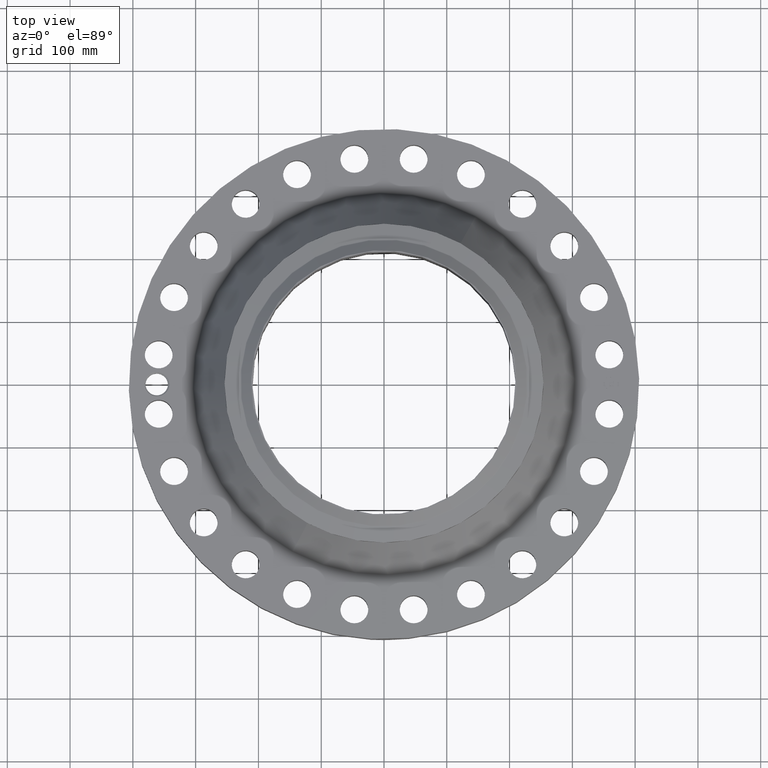
[diagram: clean part render]
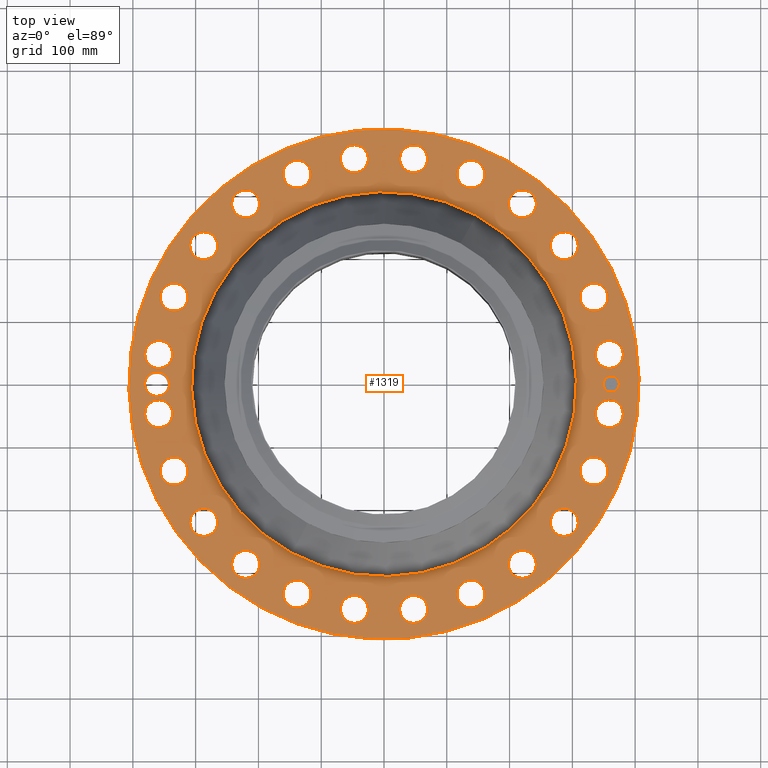
[diagram: same view with one face highlighted and labeled with its STEP entity id]
A machine part, top view. The second image highlights one B-rep face of the part: STEP entity #1319.
In plain terms, the highlighted planar face has unit normal (0, 0, -1).
Its self-contained STEP definition (entity closure, byte-faithful):
#58=AXIS2_PLACEMENT_3D('Circle Axis2P3D',#56,#57,$) ;
#687=AXIS2_PLACEMENT_3D('Circle Axis2P3D',#685,#686,$) ;
#787=AXIS2_PLACEMENT_3D('Plane Axis2P3D',#784,#785,#786) ;
#835=AXIS2_PLACEMENT_3D('Circle Axis2P3D',#833,#834,$) ;
#842=AXIS2_PLACEMENT_3D('Circle Axis2P3D',#840,#841,$) ;
#853=AXIS2_PLACEMENT_3D('Circle Axis2P3D',#851,#852,$) ;
#862=AXIS2_PLACEMENT_3D('Circle Axis2P3D',#860,#861,$) ;
#871=AXIS2_PLACEMENT_3D('Circle Axis2P3D',#869,#870,$) ;
#880=AXIS2_PLACEMENT_3D('Circle Axis2P3D',#878,#879,$) ;
#889=AXIS2_PLACEMENT_3D('Circle Axis2P3D',#887,#888,$) ;
#898=AXIS2_PLACEMENT_3D('Circle Axis2P3D',#896,#897,$) ;
#907=AXIS2_PLACEMENT_3D('Circle Axis2P3D',#905,#906,$) ;
#916=AXIS2_PLACEMENT_3D('Circle Axis2P3D',#914,#915,$) ;
#925=AXIS2_PLACEMENT_3D('Circle Axis2P3D',#923,#924,$) ;
#934=AXIS2_PLACEMENT_3D('Circle Axis2P3D',#932,#933,$) ;
#943=AXIS2_PLACEMENT_3D('Circle Axis2P3D',#941,#942,$) ;
#952=AXIS2_PLACEMENT_3D('Circle Axis2P3D',#950,#951,$) ;
#961=AXIS2_PLACEMENT_3D('Circle Axis2P3D',#959,#960,$) ;
#970=AXIS2_PLACEMENT_3D('Circle Axis2P3D',#968,#969,$) ;
#979=AXIS2_PLACEMENT_3D('Circle Axis2P3D',#977,#978,$) ;
#988=AXIS2_PLACEMENT_3D('Circle Axis2P3D',#986,#987,$) ;
#997=AXIS2_PLACEMENT_3D('Circle Axis2P3D',#995,#996,$) ;
#1006=AXIS2_PLACEMENT_3D('Circle Axis2P3D',#1004,#1005,$) ;
#1015=AXIS2_PLACEMENT_3D('Circle Axis2P3D',#1013,#1014,$) ;
#1024=AXIS2_PLACEMENT_3D('Circle Axis2P3D',#1022,#1023,$) ;
#1033=AXIS2_PLACEMENT_3D('Circle Axis2P3D',#1031,#1032,$) ;
#1042=AXIS2_PLACEMENT_3D('Circle Axis2P3D',#1040,#1041,$) ;
#1051=AXIS2_PLACEMENT_3D('Circle Axis2P3D',#1049,#1050,$) ;
#1060=AXIS2_PLACEMENT_3D('Circle Axis2P3D',#1058,#1059,$) ;
#1069=AXIS2_PLACEMENT_3D('Circle Axis2P3D',#1067,#1068,$) ;
#1078=AXIS2_PLACEMENT_3D('Circle Axis2P3D',#1076,#1077,$) ;
#1087=AXIS2_PLACEMENT_3D('Circle Axis2P3D',#1085,#1086,$) ;
#1096=AXIS2_PLACEMENT_3D('Circle Axis2P3D',#1094,#1095,$) ;
#1105=AXIS2_PLACEMENT_3D('Circle Axis2P3D',#1103,#1104,$) ;
#1114=AXIS2_PLACEMENT_3D('Circle Axis2P3D',#1112,#1113,$) ;
#1123=AXIS2_PLACEMENT_3D('Circle Axis2P3D',#1121,#1122,$) ;
#1132=AXIS2_PLACEMENT_3D('Circle Axis2P3D',#1130,#1131,$) ;
#1141=AXIS2_PLACEMENT_3D('Circle Axis2P3D',#1139,#1140,$) ;
#1150=AXIS2_PLACEMENT_3D('Circle Axis2P3D',#1148,#1149,$) ;
#1159=AXIS2_PLACEMENT_3D('Circle Axis2P3D',#1157,#1158,$) ;
#1168=AXIS2_PLACEMENT_3D('Circle Axis2P3D',#1166,#1167,$) ;
#1177=AXIS2_PLACEMENT_3D('Circle Axis2P3D',#1175,#1176,$) ;
#1186=AXIS2_PLACEMENT_3D('Circle Axis2P3D',#1184,#1185,$) ;
#1195=AXIS2_PLACEMENT_3D('Circle Axis2P3D',#1193,#1194,$) ;
#1204=AXIS2_PLACEMENT_3D('Circle Axis2P3D',#1202,#1203,$) ;
#1213=AXIS2_PLACEMENT_3D('Circle Axis2P3D',#1211,#1212,$) ;
#1222=AXIS2_PLACEMENT_3D('Circle Axis2P3D',#1220,#1221,$) ;
#1231=AXIS2_PLACEMENT_3D('Circle Axis2P3D',#1229,#1230,$) ;
#1240=AXIS2_PLACEMENT_3D('Circle Axis2P3D',#1238,#1239,$) ;
#1249=AXIS2_PLACEMENT_3D('Circle Axis2P3D',#1247,#1248,$) ;
#1258=AXIS2_PLACEMENT_3D('Circle Axis2P3D',#1256,#1257,$) ;
#1267=AXIS2_PLACEMENT_3D('Circle Axis2P3D',#1265,#1266,$) ;
#1276=AXIS2_PLACEMENT_3D('Circle Axis2P3D',#1274,#1275,$) ;
#1285=AXIS2_PLACEMENT_3D('Circle Axis2P3D',#1283,#1284,$) ;
#1294=AXIS2_PLACEMENT_3D('Circle Axis2P3D',#1292,#1293,$) ;
#1303=AXIS2_PLACEMENT_3D('Circle Axis2P3D',#1301,#1302,$) ;
#1312=AXIS2_PLACEMENT_3D('Circle Axis2P3D',#1310,#1311,$) ;
#53=CARTESIAN_POINT('Vertex',(-7.6708086177,-14.0413209903,3.75000000002)) ;
#56=CARTESIAN_POINT('Axis2P3D Location',(0.,0.,3.75000000002)) ;
#60=CARTESIAN_POINT('Vertex',(7.6708086177,14.0413209903,3.75000000002)) ;
#685=CARTESIAN_POINT('Axis2P3D Location',(0.,0.,3.75000000002)) ;
#784=CARTESIAN_POINT('Axis2P3D Location',(0.,16.0000000001,3.75000000002)) ;
#794=CARTESIAN_POINT('Control Point',(-13.4375000001,2.23792987641E-015,3.75000000002)) ;
#795=CARTESIAN_POINT('Control Point',(-13.440502702,0.0700643775621,3.75000000002)) ;
#796=CARTESIAN_POINT('Control Point',(-13.4510650987,0.139653934446,3.75000000002)) ;
#797=CARTESIAN_POINT('Control Point',(-13.4691221581,0.207669696492,3.75000000002)) ;
#798=CARTESIAN_POINT('Control Point',(-13.5195963278,0.338375381576,3.75000000002)) ;
#799=CARTESIAN_POINT('Control Point',(-13.5966936533,0.454596656891,3.75000000002)) ;
#800=CARTESIAN_POINT('Control Point',(-13.641372885,0.508119631625,3.75000000002)) ;
#801=CARTESIAN_POINT('Control Point',(-13.7248060223,0.588234346808,3.75000000002)) ;
#802=CARTESIAN_POINT('Control Point',(-13.8207317135,0.651398174402,3.75000000002)) ;
#803=CARTESIAN_POINT('Control Point',(-13.8608247127,0.673749759105,3.75000000002)) ;
#804=CARTESIAN_POINT('Control Point',(-13.9334162248,0.707459410996,3.75000000002)) ;
#805=CARTESIAN_POINT('Control Point',(-14.0094371519,0.731460636803,3.75000000002)) ;
#806=CARTESIAN_POINT('Control Point',(-14.0424616075,0.739905645218,3.75000000002)) ;
#807=CARTESIAN_POINT('Control Point',(-14.0758392512,0.746494340754,3.75000000002)) ;
#808=CARTESIAN_POINT('Control Point',(-14.1094305212,0.751211211386,3.75000000002)) ;
#809=CARTESIAN_POINT('Vertex',(-13.4375000001,2.23792987641E-015,3.75000000002)) ;
#811=CARTESIAN_POINT('Vertex',(-14.1094305212,0.751211211386,3.75000000002)) ;
#815=CARTESIAN_POINT('Control Point',(-13.4375000001,0.,3.75000000002)) ;
#816=CARTESIAN_POINT('Control Point',(-13.440503454,-0.0700819223772,3.75000000002)) ;
#817=CARTESIAN_POINT('Control Point',(-13.4510703985,-0.139688782153,3.75000000002)) ;
#818=CARTESIAN_POINT('Control Point',(-13.4691263035,-0.207700071485,3.75000000002)) ;
#819=CARTESIAN_POINT('Control Point',(-13.5196047595,-0.33841916255,3.75000000002)) ;
#820=CARTESIAN_POINT('Control Point',(-13.5966629018,-0.454573244085,3.75000000002)) ;
#821=CARTESIAN_POINT('Control Point',(-13.6413277059,-0.508069849471,3.75000000002)) ;
#822=CARTESIAN_POINT('Control Point',(-13.7414181484,-0.604187153399,3.75000000002)) ;
#823=CARTESIAN_POINT('Control Point',(-13.8594367341,-0.675897174168,3.75000000002)) ;
#824=CARTESIAN_POINT('Control Point',(-13.9220592148,-0.705005529361,3.75000000002)) ;
#825=CARTESIAN_POINT('Control Point',(-13.9980972643,-0.730534599919,3.75000000002)) ;
#826=CARTESIAN_POINT('Control Point',(-14.0761239416,-0.745926261489,3.75000000002)) ;
#827=CARTESIAN_POINT('Control Point',(-14.0873047858,-0.74791692672,3.75000000002)) ;
#828=CARTESIAN_POINT('Control Point',(-14.098516016,-0.749698855535,3.75000000002)) ;
#829=CARTESIAN_POINT('Control Point',(-14.1097524747,-0.751271385137,3.75000000002)) ;
#830=CARTESIAN_POINT('Vertex',(-14.1097524747,-0.751271385137,3.75000000002)) ;
#833=CARTESIAN_POINT('Axis2P3D Location',(-14.2500000001,1.56655091349E-014,3.75000000002)) ;
#837=CARTESIAN_POINT('Vertex',(-14.920692473,0.36640096788,3.75000000002)) ;
#840=CARTESIAN_POINT('Axis2P3D Location',(-14.2500000001,1.56655091349E-014,3.75000000002)) ;
#851=CARTESIAN_POINT('Axis2P3D Location',(14.1280892746,-1.85999823914,3.75000000002)) ;
#855=CARTESIAN_POINT('Vertex',(13.360204533,-1.44050089286,3.75000000002)) ;
#857=CARTESIAN_POINT('Vertex',(14.8959740163,-2.27949558542,3.75000000002)) ;
#860=CARTESIAN_POINT('Axis2P3D Location',(14.1280892746,-1.85999823914,3.75000000002)) ;
#869=CARTESIAN_POINT('Axis2P3D Location',(0.,0.,3.75000000002)) ;
#873=CARTESIAN_POINT('Vertex',(-5.78430904975,-10.5881066942,3.75000000002)) ;
#875=CARTESIAN_POINT('Vertex',(5.78430904975,10.5881066942,3.75000000002)) ;
#878=CARTESIAN_POINT('Axis2P3D Location',(0.,0.,3.75000000002)) ;
#887=CARTESIAN_POINT('Axis2P3D Location',(13.1652833383,-5.45323891122,3.75000000002)) ;
#891=CARTESIAN_POINT('Vertex',(13.7984291393,-6.05718542764,3.75000000002)) ;
#893=CARTESIAN_POINT('Vertex',(12.5321375373,-4.84929239481,3.75000000002)) ;
#896=CARTESIAN_POINT('Axis2P3D Location',(13.1652833383,-5.45323891122,3.75000000002)) ;
#905=CARTESIAN_POINT('Axis2P3D Location',(11.3052850992,-8.67485036341,3.75000000002)) ;
#909=CARTESIAN_POINT('Vertex',(11.7605441195,-9.42208809294,3.75000000002)) ;
#911=CARTESIAN_POINT('Vertex',(10.8500260789,-7.92761263388,3.75000000002)) ;
#914=CARTESIAN_POINT('Axis2P3D Location',(11.3052850992,-8.67485036341,3.75000000002)) ;
#923=CARTESIAN_POINT('Axis2P3D Location',(8.67485036341,-11.3052850992,3.75000000002)) ;
#927=CARTESIAN_POINT('Vertex',(8.92119745316,-12.1448910254,3.75000000002)) ;
#929=CARTESIAN_POINT('Vertex',(8.42850327366,-10.465679173,3.75000000002)) ;
#932=CARTESIAN_POINT('Axis2P3D Location',(8.67485036341,-11.3052850992,3.75000000002)) ;
#941=CARTESIAN_POINT('Axis2P3D Location',(5.45323891122,-13.1652833383,3.75000000002)) ;
#945=CARTESIAN_POINT('Vertex',(5.47388592335,-14.0400397049,3.75000000002)) ;
#947=CARTESIAN_POINT('Vertex',(5.43259189909,-12.2905269717,3.75000000002)) ;
#950=CARTESIAN_POINT('Axis2P3D Location',(5.45323891122,-13.1652833383,3.75000000002)) ;
#959=CARTESIAN_POINT('Axis2P3D Location',(1.85999823914,-14.1280892746,3.75000000002)) ;
#963=CARTESIAN_POINT('Vertex',(1.6535381139,-14.9783828808,3.75000000002)) ;
#965=CARTESIAN_POINT('Vertex',(2.06645836439,-13.2777956685,3.75000000002)) ;
#968=CARTESIAN_POINT('Axis2P3D Location',(1.85999823914,-14.1280892746,3.75000000002)) ;
#977=CARTESIAN_POINT('Axis2P3D Location',(-1.85999823914,-14.1280892746,3.75000000002)) ;
#981=CARTESIAN_POINT('Vertex',(-2.27949558542,-14.8959740163,3.75000000002)) ;
#983=CARTESIAN_POINT('Vertex',(-1.44050089286,-13.360204533,3.75000000002)) ;
#986=CARTESIAN_POINT('Axis2P3D Location',(-1.85999823914,-14.1280892746,3.75000000002)) ;
#995=CARTESIAN_POINT('Axis2P3D Location',(-5.45323891122,-13.1652833383,3.75000000002)) ;
#999=CARTESIAN_POINT('Vertex',(-6.05718542764,-13.7984291393,3.75000000002)) ;
#1001=CARTESIAN_POINT('Vertex',(-4.84929239481,-12.5321375373,3.75000000002)) ;
#1004=CARTESIAN_POINT('Axis2P3D Location',(-5.45323891122,-13.1652833383,3.75000000002)) ;
#1013=CARTESIAN_POINT('Axis2P3D Location',(-8.67485036341,-11.3052850992,3.75000000002)) ;
#1017=CARTESIAN_POINT('Vertex',(-9.42208809294,-11.7605441195,3.75000000002)) ;
#1019=CARTESIAN_POINT('Vertex',(-7.92761263388,-10.8500260789,3.75000000002)) ;
#1022=CARTESIAN_POINT('Axis2P3D Location',(-8.67485036341,-11.3052850992,3.75000000002)) ;
#1031=CARTESIAN_POINT('Axis2P3D Location',(-11.3052850992,-8.67485036341,3.75000000002)) ;
#1035=CARTESIAN_POINT('Vertex',(-12.1448910254,-8.92119745316,3.75000000002)) ;
#1037=CARTESIAN_POINT('Vertex',(-10.465679173,-8.42850327366,3.75000000002)) ;
#1040=CARTESIAN_POINT('Axis2P3D Location',(-11.3052850992,-8.67485036341,3.75000000002)) ;
#1049=CARTESIAN_POINT('Axis2P3D Location',(-13.1652833383,-5.45323891122,3.75000000002)) ;
#1053=CARTESIAN_POINT('Vertex',(-14.0400397049,-5.47388592335,3.75000000002)) ;
#1055=CARTESIAN_POINT('Vertex',(-12.2905269717,-5.43259189909,3.75000000002)) ;
#1058=CARTESIAN_POINT('Axis2P3D Location',(-13.1652833383,-5.45323891122,3.75000000002)) ;
#1067=CARTESIAN_POINT('Axis2P3D Location',(-14.1280892746,-1.85999823914,3.75000000002)) ;
#1071=CARTESIAN_POINT('Vertex',(-14.9783828808,-1.6535381139,3.75000000002)) ;
#1073=CARTESIAN_POINT('Vertex',(-13.2777956685,-2.06645836439,3.75000000002)) ;
#1076=CARTESIAN_POINT('Axis2P3D Location',(-14.1280892746,-1.85999823914,3.75000000002)) ;
#1085=CARTESIAN_POINT('Axis2P3D Location',(-14.1280892746,1.85999823914,3.75000000002)) ;
#1089=CARTESIAN_POINT('Vertex',(-14.8959740163,2.27949558542,3.75000000002)) ;
#1091=CARTESIAN_POINT('Vertex',(-13.360204533,1.44050089286,3.75000000002)) ;
#1094=CARTESIAN_POINT('Axis2P3D Location',(-14.1280892746,1.85999823914,3.75000000002)) ;
#1103=CARTESIAN_POINT('Axis2P3D Location',(-13.1652833383,5.45323891122,3.75000000002)) ;
#1107=CARTESIAN_POINT('Vertex',(-13.7984291393,6.05718542764,3.75000000002)) ;
#1109=CARTESIAN_POINT('Vertex',(-12.5321375373,4.84929239481,3.75000000002)) ;
#1112=CARTESIAN_POINT('Axis2P3D Location',(-13.1652833383,5.45323891122,3.75000000002)) ;
#1121=CARTESIAN_POINT('Axis2P3D Location',(-11.3052850992,8.67485036341,3.75000000002)) ;
#1125=CARTESIAN_POINT('Vertex',(-11.7605441195,9.42208809294,3.75000000002)) ;
#1127=CARTESIAN_POINT('Vertex',(-10.8500260789,7.92761263388,3.75000000002)) ;
#1130=CARTESIAN_POINT('Axis2P3D Location',(-11.3052850992,8.67485036341,3.75000000002)) ;
#1139=CARTESIAN_POINT('Axis2P3D Location',(-8.67485036341,11.3052850992,3.75000000002)) ;
#1143=CARTESIAN_POINT('Vertex',(-8.92119745316,12.1448910254,3.75000000002)) ;
#1145=CARTESIAN_POINT('Vertex',(-8.42850327366,10.465679173,3.75000000002)) ;
#1148=CARTESIAN_POINT('Axis2P3D Location',(-8.67485036341,11.3052850992,3.75000000002)) ;
#1157=CARTESIAN_POINT('Axis2P3D Location',(-5.45323891122,13.1652833383,3.75000000002)) ;
#1161=CARTESIAN_POINT('Vertex',(-5.47388592335,14.0400397049,3.75000000002)) ;
#1163=CARTESIAN_POINT('Vertex',(-5.43259189909,12.2905269717,3.75000000002)) ;
#1166=CARTESIAN_POINT('Axis2P3D Location',(-5.45323891122,13.1652833383,3.75000000002)) ;
#1175=CARTESIAN_POINT('Axis2P3D Location',(-1.85999823914,14.1280892746,3.75000000002)) ;
#1179=CARTESIAN_POINT('Vertex',(-1.6535381139,14.9783828808,3.75000000002)) ;
#1181=CARTESIAN_POINT('Vertex',(-2.06645836439,13.2777956685,3.75000000002)) ;
#1184=CARTESIAN_POINT('Axis2P3D Location',(-1.85999823914,14.1280892746,3.75000000002)) ;
#1193=CARTESIAN_POINT('Axis2P3D Location',(1.85999823914,14.1280892746,3.75000000002)) ;
#1197=CARTESIAN_POINT('Vertex',(2.27949558542,14.8959740163,3.75000000002)) ;
#1199=CARTESIAN_POINT('Vertex',(1.44050089286,13.360204533,3.75000000002)) ;
#1202=CARTESIAN_POINT('Axis2P3D Location',(1.85999823914,14.1280892746,3.75000000002)) ;
#1211=CARTESIAN_POINT('Axis2P3D Location',(5.45323891122,13.1652833383,3.75000000002)) ;
#1215=CARTESIAN_POINT('Vertex',(6.05718542764,13.7984291393,3.75000000002)) ;
#1217=CARTESIAN_POINT('Vertex',(4.84929239481,12.5321375373,3.75000000002)) ;
#1220=CARTESIAN_POINT('Axis2P3D Location',(5.45323891122,13.1652833383,3.75000000002)) ;
#1229=CARTESIAN_POINT('Axis2P3D Location',(8.67485036341,11.3052850992,3.75000000002)) ;
#1233=CARTESIAN_POINT('Vertex',(9.42208809294,11.7605441195,3.75000000002)) ;
#1235=CARTESIAN_POINT('Vertex',(7.92761263388,10.8500260789,3.75000000002)) ;
#1238=CARTESIAN_POINT('Axis2P3D Location',(8.67485036341,11.3052850992,3.75000000002)) ;
#1247=CARTESIAN_POINT('Axis2P3D Location',(11.3052850992,8.67485036341,3.75000000002)) ;
#1251=CARTESIAN_POINT('Vertex',(12.1448910254,8.92119745316,3.75000000002)) ;
#1253=CARTESIAN_POINT('Vertex',(10.465679173,8.42850327366,3.75000000002)) ;
#1256=CARTESIAN_POINT('Axis2P3D Location',(11.3052850992,8.67485036341,3.75000000002)) ;
#1265=CARTESIAN_POINT('Axis2P3D Location',(13.1652833383,5.45323891122,3.75000000002)) ;
#1269=CARTESIAN_POINT('Vertex',(14.0400397049,5.47388592335,3.75000000002)) ;
#1271=CARTESIAN_POINT('Vertex',(12.2905269717,5.43259189909,3.75000000002)) ;
#1274=CARTESIAN_POINT('Axis2P3D Location',(13.1652833383,5.45323891122,3.75000000002)) ;
#1283=CARTESIAN_POINT('Axis2P3D Location',(14.1280892746,1.85999823914,3.75000000002)) ;
#1287=CARTESIAN_POINT('Vertex',(14.9783828808,1.6535381139,3.75000000002)) ;
#1289=CARTESIAN_POINT('Vertex',(13.2777956685,2.06645836439,3.75000000002)) ;
#1292=CARTESIAN_POINT('Axis2P3D Location',(14.1280892746,1.85999823914,3.75000000002)) ;
#1301=CARTESIAN_POINT('Axis2P3D Location',(14.2500000001,-1.29799932832E-013,3.75000000002)) ;
#1305=CARTESIAN_POINT('Vertex',(14.2500000001,0.499999995002,3.75000000002)) ;
#1307=CARTESIAN_POINT('Vertex',(14.2500000001,-0.499999995002,3.75000000002)) ;
#1310=CARTESIAN_POINT('Axis2P3D Location',(14.2500000001,-1.29799932832E-013,3.75000000002)) ;
#57=DIRECTION('Axis2P3D Direction',(0.,0.,-0.0393700787402)) ;
#686=DIRECTION('Axis2P3D Direction',(0.,0.,-0.0393700787402)) ;
#785=DIRECTION('Axis2P3D Direction',(0.,0.,-0.0393700787402)) ;
#786=DIRECTION('Axis2P3D XDirection',(0.0393700787402,0.,0.)) ;
#834=DIRECTION('Axis2P3D Direction',(0.,0.,-0.0393700787402)) ;
#841=DIRECTION('Axis2P3D Direction',(0.,0.,-0.0393700787402)) ;
#852=DIRECTION('Axis2P3D Direction',(0.,0.,-0.0393700787402)) ;
#861=DIRECTION('Axis2P3D Direction',(0.,0.,-0.0393700787402)) ;
#870=DIRECTION('Axis2P3D Direction',(0.,0.,-0.0393700787402)) ;
#879=DIRECTION('Axis2P3D Direction',(0.,0.,-0.0393700787402)) ;
#888=DIRECTION('Axis2P3D Direction',(0.,0.,-0.0393700787402)) ;
#897=DIRECTION('Axis2P3D Direction',(0.,0.,-0.0393700787402)) ;
#906=DIRECTION('Axis2P3D Direction',(0.,0.,-0.0393700787402)) ;
#915=DIRECTION('Axis2P3D Direction',(0.,0.,-0.0393700787402)) ;
#924=DIRECTION('Axis2P3D Direction',(0.,0.,-0.0393700787402)) ;
#933=DIRECTION('Axis2P3D Direction',(0.,0.,-0.0393700787402)) ;
#942=DIRECTION('Axis2P3D Direction',(0.,0.,-0.0393700787402)) ;
#951=DIRECTION('Axis2P3D Direction',(0.,0.,-0.0393700787402)) ;
#960=DIRECTION('Axis2P3D Direction',(0.,0.,-0.0393700787402)) ;
#969=DIRECTION('Axis2P3D Direction',(0.,0.,-0.0393700787402)) ;
#978=DIRECTION('Axis2P3D Direction',(0.,0.,-0.0393700787402)) ;
#987=DIRECTION('Axis2P3D Direction',(0.,0.,-0.0393700787402)) ;
#996=DIRECTION('Axis2P3D Direction',(0.,0.,-0.0393700787402)) ;
#1005=DIRECTION('Axis2P3D Direction',(0.,0.,-0.0393700787402)) ;
#1014=DIRECTION('Axis2P3D Direction',(0.,0.,-0.0393700787402)) ;
#1023=DIRECTION('Axis2P3D Direction',(0.,0.,-0.0393700787402)) ;
#1032=DIRECTION('Axis2P3D Direction',(0.,0.,-0.0393700787402)) ;
#1041=DIRECTION('Axis2P3D Direction',(0.,0.,-0.0393700787402)) ;
#1050=DIRECTION('Axis2P3D Direction',(0.,0.,-0.0393700787402)) ;
#1059=DIRECTION('Axis2P3D Direction',(0.,0.,-0.0393700787402)) ;
#1068=DIRECTION('Axis2P3D Direction',(0.,0.,-0.0393700787402)) ;
#1077=DIRECTION('Axis2P3D Direction',(0.,0.,-0.0393700787402)) ;
#1086=DIRECTION('Axis2P3D Direction',(0.,0.,-0.0393700787402)) ;
#1095=DIRECTION('Axis2P3D Direction',(0.,0.,-0.0393700787402)) ;
#1104=DIRECTION('Axis2P3D Direction',(0.,0.,-0.0393700787402)) ;
#1113=DIRECTION('Axis2P3D Direction',(0.,0.,-0.0393700787402)) ;
#1122=DIRECTION('Axis2P3D Direction',(0.,0.,-0.0393700787402)) ;
#1131=DIRECTION('Axis2P3D Direction',(0.,0.,-0.0393700787402)) ;
#1140=DIRECTION('Axis2P3D Direction',(0.,0.,-0.0393700787402)) ;
#1149=DIRECTION('Axis2P3D Direction',(0.,0.,-0.0393700787402)) ;
#1158=DIRECTION('Axis2P3D Direction',(0.,0.,-0.0393700787402)) ;
#1167=DIRECTION('Axis2P3D Direction',(0.,0.,-0.0393700787402)) ;
#1176=DIRECTION('Axis2P3D Direction',(0.,0.,-0.0393700787402)) ;
#1185=DIRECTION('Axis2P3D Direction',(0.,0.,-0.0393700787402)) ;
#1194=DIRECTION('Axis2P3D Direction',(0.,0.,-0.0393700787402)) ;
#1203=DIRECTION('Axis2P3D Direction',(0.,0.,-0.0393700787402)) ;
#1212=DIRECTION('Axis2P3D Direction',(0.,0.,-0.0393700787402)) ;
#1221=DIRECTION('Axis2P3D Direction',(0.,0.,-0.0393700787402)) ;
#1230=DIRECTION('Axis2P3D Direction',(0.,0.,-0.0393700787402)) ;
#1239=DIRECTION('Axis2P3D Direction',(0.,0.,-0.0393700787402)) ;
#1248=DIRECTION('Axis2P3D Direction',(0.,0.,-0.0393700787402)) ;
#1257=DIRECTION('Axis2P3D Direction',(0.,0.,-0.0393700787402)) ;
#1266=DIRECTION('Axis2P3D Direction',(0.,0.,-0.0393700787402)) ;
#1275=DIRECTION('Axis2P3D Direction',(0.,0.,-0.0393700787402)) ;
#1284=DIRECTION('Axis2P3D Direction',(0.,0.,-0.0393700787402)) ;
#1293=DIRECTION('Axis2P3D Direction',(0.,0.,-0.0393700787402)) ;
#1302=DIRECTION('Axis2P3D Direction',(0.,0.,-0.0393700787402)) ;
#1311=DIRECTION('Axis2P3D Direction',(0.,0.,-0.0393700787402)) ;
#790=ORIENTED_EDGE('',*,*,#689,.F.) ;
#791=ORIENTED_EDGE('',*,*,#62,.F.) ;
#846=ORIENTED_EDGE('',*,*,#813,.F.) ;
#847=ORIENTED_EDGE('',*,*,#832,.T.) ;
#848=ORIENTED_EDGE('',*,*,#839,.T.) ;
#849=ORIENTED_EDGE('',*,*,#844,.T.) ;
#866=ORIENTED_EDGE('',*,*,#859,.T.) ;
#867=ORIENTED_EDGE('',*,*,#864,.T.) ;
#884=ORIENTED_EDGE('',*,*,#877,.T.) ;
#885=ORIENTED_EDGE('',*,*,#882,.T.) ;
#902=ORIENTED_EDGE('',*,*,#895,.T.) ;
#903=ORIENTED_EDGE('',*,*,#900,.T.) ;
#920=ORIENTED_EDGE('',*,*,#913,.T.) ;
#921=ORIENTED_EDGE('',*,*,#918,.T.) ;
#938=ORIENTED_EDGE('',*,*,#931,.T.) ;
#939=ORIENTED_EDGE('',*,*,#936,.T.) ;
#956=ORIENTED_EDGE('',*,*,#949,.T.) ;
#957=ORIENTED_EDGE('',*,*,#954,.T.) ;
#974=ORIENTED_EDGE('',*,*,#967,.T.) ;
#975=ORIENTED_EDGE('',*,*,#972,.T.) ;
#992=ORIENTED_EDGE('',*,*,#985,.T.) ;
#993=ORIENTED_EDGE('',*,*,#990,.T.) ;
#1010=ORIENTED_EDGE('',*,*,#1003,.T.) ;
#1011=ORIENTED_EDGE('',*,*,#1008,.T.) ;
#1028=ORIENTED_EDGE('',*,*,#1021,.T.) ;
#1029=ORIENTED_EDGE('',*,*,#1026,.T.) ;
#1046=ORIENTED_EDGE('',*,*,#1039,.T.) ;
#1047=ORIENTED_EDGE('',*,*,#1044,.T.) ;
#1064=ORIENTED_EDGE('',*,*,#1057,.T.) ;
#1065=ORIENTED_EDGE('',*,*,#1062,.T.) ;
#1082=ORIENTED_EDGE('',*,*,#1075,.T.) ;
#1083=ORIENTED_EDGE('',*,*,#1080,.T.) ;
#1100=ORIENTED_EDGE('',*,*,#1093,.T.) ;
#1101=ORIENTED_EDGE('',*,*,#1098,.T.) ;
#1118=ORIENTED_EDGE('',*,*,#1111,.T.) ;
#1119=ORIENTED_EDGE('',*,*,#1116,.T.) ;
#1136=ORIENTED_EDGE('',*,*,#1129,.T.) ;
#1137=ORIENTED_EDGE('',*,*,#1134,.T.) ;
#1154=ORIENTED_EDGE('',*,*,#1147,.T.) ;
#1155=ORIENTED_EDGE('',*,*,#1152,.T.) ;
#1172=ORIENTED_EDGE('',*,*,#1165,.T.) ;
#1173=ORIENTED_EDGE('',*,*,#1170,.T.) ;
#1190=ORIENTED_EDGE('',*,*,#1183,.T.) ;
#1191=ORIENTED_EDGE('',*,*,#1188,.T.) ;
#1208=ORIENTED_EDGE('',*,*,#1201,.T.) ;
#1209=ORIENTED_EDGE('',*,*,#1206,.T.) ;
#1226=ORIENTED_EDGE('',*,*,#1219,.T.) ;
#1227=ORIENTED_EDGE('',*,*,#1224,.T.) ;
#1244=ORIENTED_EDGE('',*,*,#1237,.T.) ;
#1245=ORIENTED_EDGE('',*,*,#1242,.T.) ;
#1262=ORIENTED_EDGE('',*,*,#1255,.T.) ;
#1263=ORIENTED_EDGE('',*,*,#1260,.T.) ;
#1280=ORIENTED_EDGE('',*,*,#1273,.T.) ;
#1281=ORIENTED_EDGE('',*,*,#1278,.T.) ;
#1298=ORIENTED_EDGE('',*,*,#1291,.T.) ;
#1299=ORIENTED_EDGE('',*,*,#1296,.T.) ;
#1316=ORIENTED_EDGE('',*,*,#1309,.T.) ;
#1317=ORIENTED_EDGE('',*,*,#1314,.T.) ;
#850=FACE_BOUND('',#845,.T.) ;
#868=FACE_BOUND('',#865,.T.) ;
#886=FACE_BOUND('',#883,.T.) ;
#904=FACE_BOUND('',#901,.T.) ;
#922=FACE_BOUND('',#919,.T.) ;
#940=FACE_BOUND('',#937,.T.) ;
#958=FACE_BOUND('',#955,.T.) ;
#976=FACE_BOUND('',#973,.T.) ;
#994=FACE_BOUND('',#991,.T.) ;
#1012=FACE_BOUND('',#1009,.T.) ;
#1030=FACE_BOUND('',#1027,.T.) ;
#1048=FACE_BOUND('',#1045,.T.) ;
#1066=FACE_BOUND('',#1063,.T.) ;
#1084=FACE_BOUND('',#1081,.T.) ;
#1102=FACE_BOUND('',#1099,.T.) ;
#1120=FACE_BOUND('',#1117,.T.) ;
#1138=FACE_BOUND('',#1135,.T.) ;
#1156=FACE_BOUND('',#1153,.T.) ;
#1174=FACE_BOUND('',#1171,.T.) ;
#1192=FACE_BOUND('',#1189,.T.) ;
#1210=FACE_BOUND('',#1207,.T.) ;
#1228=FACE_BOUND('',#1225,.T.) ;
#1246=FACE_BOUND('',#1243,.T.) ;
#1264=FACE_BOUND('',#1261,.T.) ;
#1282=FACE_BOUND('',#1279,.T.) ;
#1300=FACE_BOUND('',#1297,.T.) ;
#1318=FACE_BOUND('',#1315,.T.) ;
#1319=ADVANCED_FACE('PartBody',(#792,#850,#868,#886,#904,#922,#940,#958,#976,#994,#1012,#1030,#1048,#1066,#1084,#1102,#1120,#1138,#1156,#1174,#1192,#1210,#1228,#1246,#1264,#1282,#1300,#1318),#788,.F.) ;
#793=B_SPLINE_CURVE_WITH_KNOTS('',5,(#794,#795,#796,#797,#798,#799,#800,#801,#802,#803,#804,#805,#806,#807,#808),.UNSPECIFIED.,.F.,.U.,(6,3,3,3,6),(0.,12.1950224946,24.3883249443,32.5133189727,38.5898964143),.UNSPECIFIED.) ;
#814=B_SPLINE_CURVE_WITH_KNOTS('',5,(#815,#816,#817,#818,#819,#820,#821,#822,#823,#824,#825,#826,#827,#828,#829),.UNSPECIFIED.,.F.,.U.,(6,3,3,3,6),(0.,12.1980762494,24.406283808,36.6208525527,38.6563306532),.UNSPECIFIED.) ;
#59=CIRCLE('generated circle',#58,16.0000000001) ;
#688=CIRCLE('generated circle',#687,16.0000000001) ;
#836=CIRCLE('generated circle',#835,0.764250000003) ;
#843=CIRCLE('generated circle',#842,0.764250000003) ;
#854=CIRCLE('generated circle',#853,0.875000000004) ;
#863=CIRCLE('generated circle',#862,0.875000000004) ;
#872=CIRCLE('generated circle',#871,12.0650832799) ;
#881=CIRCLE('generated circle',#880,12.0650832799) ;
#890=CIRCLE('generated circle',#889,0.875000000004) ;
#899=CIRCLE('generated circle',#898,0.875000000004) ;
#908=CIRCLE('generated circle',#907,0.875000000003) ;
#917=CIRCLE('generated circle',#916,0.875000000003) ;
#926=CIRCLE('generated circle',#925,0.875000000004) ;
#935=CIRCLE('generated circle',#934,0.875000000004) ;
#944=CIRCLE('generated circle',#943,0.875000000003) ;
#953=CIRCLE('generated circle',#952,0.875000000003) ;
#962=CIRCLE('generated circle',#961,0.875000000004) ;
#971=CIRCLE('generated circle',#970,0.875000000004) ;
#980=CIRCLE('generated circle',#979,0.875000000004) ;
#989=CIRCLE('generated circle',#988,0.875000000004) ;
#998=CIRCLE('generated circle',#997,0.875000000004) ;
#1007=CIRCLE('generated circle',#1006,0.875000000004) ;
#1016=CIRCLE('generated circle',#1015,0.875000000003) ;
#1025=CIRCLE('generated circle',#1024,0.875000000003) ;
#1034=CIRCLE('generated circle',#1033,0.875000000004) ;
#1043=CIRCLE('generated circle',#1042,0.875000000004) ;
#1052=CIRCLE('generated circle',#1051,0.875000000003) ;
#1061=CIRCLE('generated circle',#1060,0.875000000003) ;
#1070=CIRCLE('generated circle',#1069,0.875000000004) ;
#1079=CIRCLE('generated circle',#1078,0.875000000004) ;
#1088=CIRCLE('generated circle',#1087,0.875000000004) ;
#1097=CIRCLE('generated circle',#1096,0.875000000004) ;
#1106=CIRCLE('generated circle',#1105,0.875000000004) ;
#1115=CIRCLE('generated circle',#1114,0.875000000004) ;
#1124=CIRCLE('generated circle',#1123,0.875000000003) ;
#1133=CIRCLE('generated circle',#1132,0.875000000003) ;
#1142=CIRCLE('generated circle',#1141,0.875000000004) ;
#1151=CIRCLE('generated circle',#1150,0.875000000004) ;
#1160=CIRCLE('generated circle',#1159,0.875000000003) ;
#1169=CIRCLE('generated circle',#1168,0.875000000003) ;
#1178=CIRCLE('generated circle',#1177,0.875000000004) ;
#1187=CIRCLE('generated circle',#1186,0.875000000004) ;
#1196=CIRCLE('generated circle',#1195,0.875000000004) ;
#1205=CIRCLE('generated circle',#1204,0.875000000004) ;
#1214=CIRCLE('generated circle',#1213,0.875000000004) ;
#1223=CIRCLE('generated circle',#1222,0.875000000004) ;
#1232=CIRCLE('generated circle',#1231,0.875000000003) ;
#1241=CIRCLE('generated circle',#1240,0.875000000003) ;
#1250=CIRCLE('generated circle',#1249,0.875000000004) ;
#1259=CIRCLE('generated circle',#1258,0.875000000004) ;
#1268=CIRCLE('generated circle',#1267,0.875000000003) ;
#1277=CIRCLE('generated circle',#1276,0.875000000003) ;
#1286=CIRCLE('generated circle',#1285,0.875000000004) ;
#1295=CIRCLE('generated circle',#1294,0.875000000004) ;
#1304=CIRCLE('generated circle',#1303,0.499999995002) ;
#1313=CIRCLE('generated circle',#1312,0.499999995002) ;
#62=EDGE_CURVE('',#54,#61,#59,.T.) ;
#689=EDGE_CURVE('',#61,#54,#688,.T.) ;
#813=EDGE_CURVE('',#810,#812,#793,.T.) ;
#832=EDGE_CURVE('',#810,#831,#814,.T.) ;
#839=EDGE_CURVE('',#831,#838,#836,.T.) ;
#844=EDGE_CURVE('',#838,#812,#843,.T.) ;
#859=EDGE_CURVE('',#856,#858,#854,.T.) ;
#864=EDGE_CURVE('',#858,#856,#863,.T.) ;
#877=EDGE_CURVE('',#874,#876,#872,.T.) ;
#882=EDGE_CURVE('',#876,#874,#881,.T.) ;
#895=EDGE_CURVE('',#892,#894,#890,.T.) ;
#900=EDGE_CURVE('',#894,#892,#899,.T.) ;
#913=EDGE_CURVE('',#910,#912,#908,.T.) ;
#918=EDGE_CURVE('',#912,#910,#917,.T.) ;
#931=EDGE_CURVE('',#928,#930,#926,.T.) ;
#936=EDGE_CURVE('',#930,#928,#935,.T.) ;
#949=EDGE_CURVE('',#946,#948,#944,.T.) ;
#954=EDGE_CURVE('',#948,#946,#953,.T.) ;
#967=EDGE_CURVE('',#964,#966,#962,.T.) ;
#972=EDGE_CURVE('',#966,#964,#971,.T.) ;
#985=EDGE_CURVE('',#982,#984,#980,.T.) ;
#990=EDGE_CURVE('',#984,#982,#989,.T.) ;
#1003=EDGE_CURVE('',#1000,#1002,#998,.T.) ;
#1008=EDGE_CURVE('',#1002,#1000,#1007,.T.) ;
#1021=EDGE_CURVE('',#1018,#1020,#1016,.T.) ;
#1026=EDGE_CURVE('',#1020,#1018,#1025,.T.) ;
#1039=EDGE_CURVE('',#1036,#1038,#1034,.T.) ;
#1044=EDGE_CURVE('',#1038,#1036,#1043,.T.) ;
#1057=EDGE_CURVE('',#1054,#1056,#1052,.T.) ;
#1062=EDGE_CURVE('',#1056,#1054,#1061,.T.) ;
#1075=EDGE_CURVE('',#1072,#1074,#1070,.T.) ;
#1080=EDGE_CURVE('',#1074,#1072,#1079,.T.) ;
#1093=EDGE_CURVE('',#1090,#1092,#1088,.T.) ;
#1098=EDGE_CURVE('',#1092,#1090,#1097,.T.) ;
#1111=EDGE_CURVE('',#1108,#1110,#1106,.T.) ;
#1116=EDGE_CURVE('',#1110,#1108,#1115,.T.) ;
#1129=EDGE_CURVE('',#1126,#1128,#1124,.T.) ;
#1134=EDGE_CURVE('',#1128,#1126,#1133,.T.) ;
#1147=EDGE_CURVE('',#1144,#1146,#1142,.T.) ;
#1152=EDGE_CURVE('',#1146,#1144,#1151,.T.) ;
#1165=EDGE_CURVE('',#1162,#1164,#1160,.T.) ;
#1170=EDGE_CURVE('',#1164,#1162,#1169,.T.) ;
#1183=EDGE_CURVE('',#1180,#1182,#1178,.T.) ;
#1188=EDGE_CURVE('',#1182,#1180,#1187,.T.) ;
#1201=EDGE_CURVE('',#1198,#1200,#1196,.T.) ;
#1206=EDGE_CURVE('',#1200,#1198,#1205,.T.) ;
#1219=EDGE_CURVE('',#1216,#1218,#1214,.T.) ;
#1224=EDGE_CURVE('',#1218,#1216,#1223,.T.) ;
#1237=EDGE_CURVE('',#1234,#1236,#1232,.T.) ;
#1242=EDGE_CURVE('',#1236,#1234,#1241,.T.) ;
#1255=EDGE_CURVE('',#1252,#1254,#1250,.T.) ;
#1260=EDGE_CURVE('',#1254,#1252,#1259,.T.) ;
#1273=EDGE_CURVE('',#1270,#1272,#1268,.T.) ;
#1278=EDGE_CURVE('',#1272,#1270,#1277,.T.) ;
#1291=EDGE_CURVE('',#1288,#1290,#1286,.T.) ;
#1296=EDGE_CURVE('',#1290,#1288,#1295,.T.) ;
#1309=EDGE_CURVE('',#1306,#1308,#1304,.T.) ;
#1314=EDGE_CURVE('',#1308,#1306,#1313,.T.) ;
#789=EDGE_LOOP('',(#790,#791)) ;
#845=EDGE_LOOP('',(#846,#847,#848,#849)) ;
#865=EDGE_LOOP('',(#866,#867)) ;
#883=EDGE_LOOP('',(#884,#885)) ;
#901=EDGE_LOOP('',(#902,#903)) ;
#919=EDGE_LOOP('',(#920,#921)) ;
#937=EDGE_LOOP('',(#938,#939)) ;
#955=EDGE_LOOP('',(#956,#957)) ;
#973=EDGE_LOOP('',(#974,#975)) ;
#991=EDGE_LOOP('',(#992,#993)) ;
#1009=EDGE_LOOP('',(#1010,#1011)) ;
#1027=EDGE_LOOP('',(#1028,#1029)) ;
#1045=EDGE_LOOP('',(#1046,#1047)) ;
#1063=EDGE_LOOP('',(#1064,#1065)) ;
#1081=EDGE_LOOP('',(#1082,#1083)) ;
#1099=EDGE_LOOP('',(#1100,#1101)) ;
#1117=EDGE_LOOP('',(#1118,#1119)) ;
#1135=EDGE_LOOP('',(#1136,#1137)) ;
#1153=EDGE_LOOP('',(#1154,#1155)) ;
#1171=EDGE_LOOP('',(#1172,#1173)) ;
#1189=EDGE_LOOP('',(#1190,#1191)) ;
#1207=EDGE_LOOP('',(#1208,#1209)) ;
#1225=EDGE_LOOP('',(#1226,#1227)) ;
#1243=EDGE_LOOP('',(#1244,#1245)) ;
#1261=EDGE_LOOP('',(#1262,#1263)) ;
#1279=EDGE_LOOP('',(#1280,#1281)) ;
#1297=EDGE_LOOP('',(#1298,#1299)) ;
#1315=EDGE_LOOP('',(#1316,#1317)) ;
#792=FACE_OUTER_BOUND('',#789,.T.) ;
#788=PLANE('',#787) ;
#54=VERTEX_POINT('',#53) ;
#61=VERTEX_POINT('',#60) ;
#810=VERTEX_POINT('',#809) ;
#812=VERTEX_POINT('',#811) ;
#831=VERTEX_POINT('',#830) ;
#838=VERTEX_POINT('',#837) ;
#856=VERTEX_POINT('',#855) ;
#858=VERTEX_POINT('',#857) ;
#874=VERTEX_POINT('',#873) ;
#876=VERTEX_POINT('',#875) ;
#892=VERTEX_POINT('',#891) ;
#894=VERTEX_POINT('',#893) ;
#910=VERTEX_POINT('',#909) ;
#912=VERTEX_POINT('',#911) ;
#928=VERTEX_POINT('',#927) ;
#930=VERTEX_POINT('',#929) ;
#946=VERTEX_POINT('',#945) ;
#948=VERTEX_POINT('',#947) ;
#964=VERTEX_POINT('',#963) ;
#966=VERTEX_POINT('',#965) ;
#982=VERTEX_POINT('',#981) ;
#984=VERTEX_POINT('',#983) ;
#1000=VERTEX_POINT('',#999) ;
#1002=VERTEX_POINT('',#1001) ;
#1018=VERTEX_POINT('',#1017) ;
#1020=VERTEX_POINT('',#1019) ;
#1036=VERTEX_POINT('',#1035) ;
#1038=VERTEX_POINT('',#1037) ;
#1054=VERTEX_POINT('',#1053) ;
#1056=VERTEX_POINT('',#1055) ;
#1072=VERTEX_POINT('',#1071) ;
#1074=VERTEX_POINT('',#1073) ;
#1090=VERTEX_POINT('',#1089) ;
#1092=VERTEX_POINT('',#1091) ;
#1108=VERTEX_POINT('',#1107) ;
#1110=VERTEX_POINT('',#1109) ;
#1126=VERTEX_POINT('',#1125) ;
#1128=VERTEX_POINT('',#1127) ;
#1144=VERTEX_POINT('',#1143) ;
#1146=VERTEX_POINT('',#1145) ;
#1162=VERTEX_POINT('',#1161) ;
#1164=VERTEX_POINT('',#1163) ;
#1180=VERTEX_POINT('',#1179) ;
#1182=VERTEX_POINT('',#1181) ;
#1198=VERTEX_POINT('',#1197) ;
#1200=VERTEX_POINT('',#1199) ;
#1216=VERTEX_POINT('',#1215) ;
#1218=VERTEX_POINT('',#1217) ;
#1234=VERTEX_POINT('',#1233) ;
#1236=VERTEX_POINT('',#1235) ;
#1252=VERTEX_POINT('',#1251) ;
#1254=VERTEX_POINT('',#1253) ;
#1270=VERTEX_POINT('',#1269) ;
#1272=VERTEX_POINT('',#1271) ;
#1288=VERTEX_POINT('',#1287) ;
#1290=VERTEX_POINT('',#1289) ;
#1306=VERTEX_POINT('',#1305) ;
#1308=VERTEX_POINT('',#1307) ;